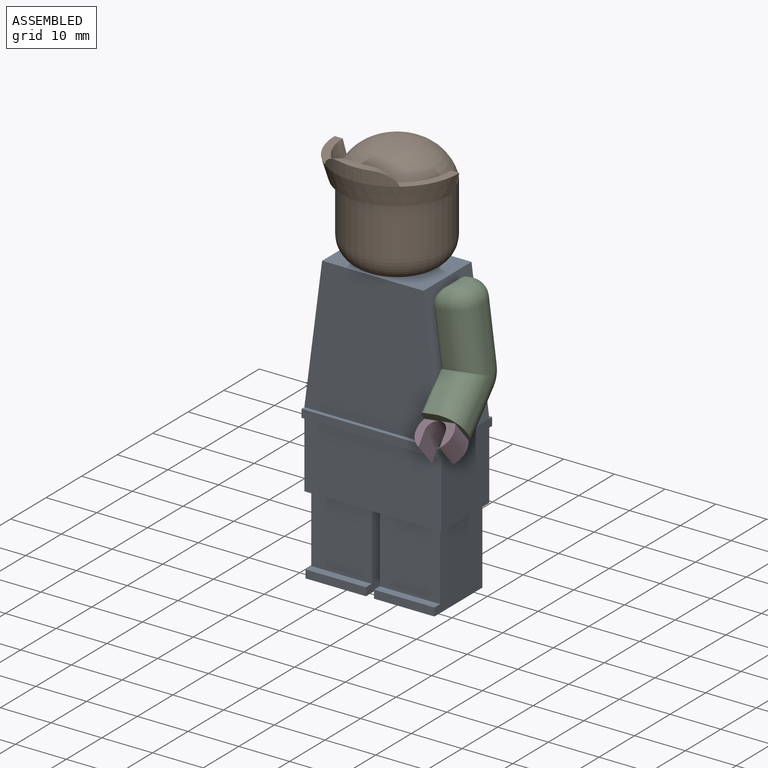
[diagram: assembled view]
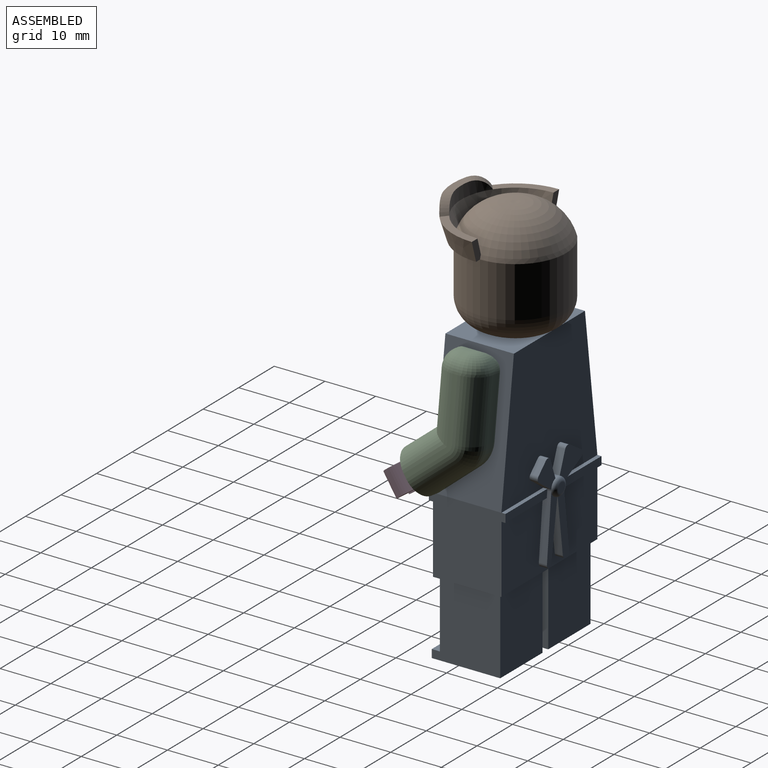
[diagram: assembled view, second angle]
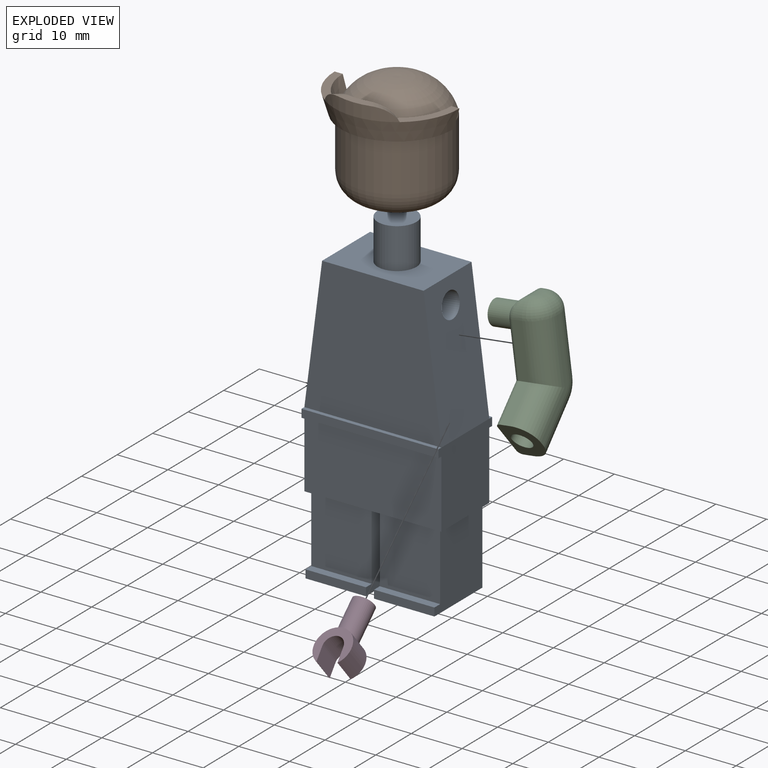
[diagram: exploded view]
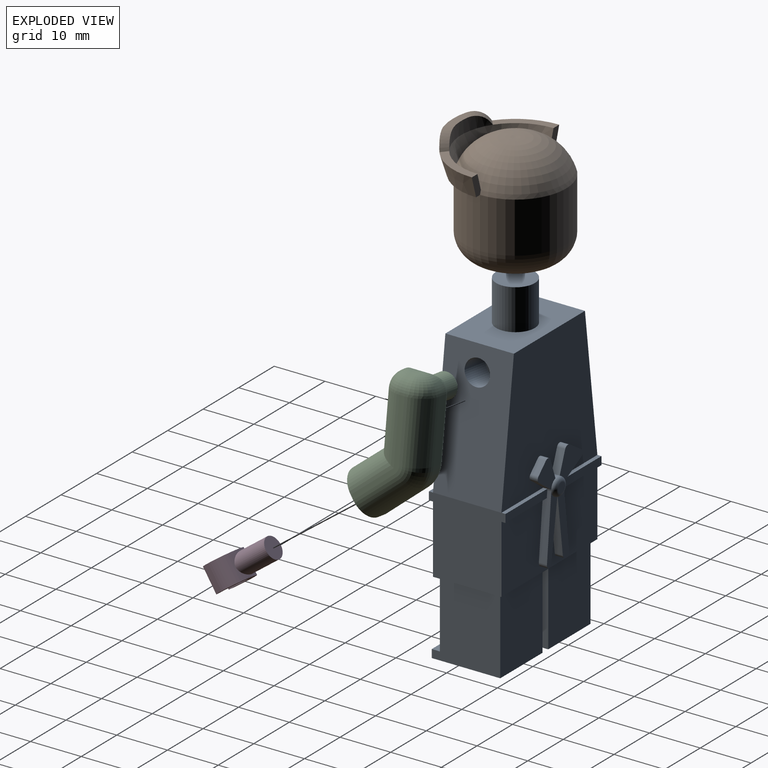
[diagram: exploded view, second angle]
ASSEMBLY  parts=4 mates=4
PART A: 68 faces, bbox 27x16.7x65 mm
  f0: cylinder r=1.76mm len=1.6mm, axis (0,-1,0), area 0.4mm2, adj f4,f9,f10,f16,f21,f67
  f1: cylinder r=1.76mm len=1.6mm, axis (0,-1,0), area 0.1mm2, adj f7,f8,f17,f67
  f2: cylinder r=1.76mm len=1.6mm, axis (0,-1,0), area 0.2mm2, adj f3,f5,f6,f16,f20,f67
  f3: plane 11.74x0.8mm, normal (0,0,1), area 9.4mm2, adj f2,f16,f20,f33
  f4: plane 11.74x0.8mm, normal (0,0,1), area 9.4mm2, adj f0,f16,f21,f34
  f5: plane 3.49x2.57mm, normal (0.59,0,-0.8), area 6.9mm2, adj f2,f16,f56,f58
  f6: plane 12.67x1.6mm, normal (1,0,0.1), area 19.3mm2, adj f2,f15,f17,f18,f20,f62
  f7: plane 11.3x1.72mm, normal (-0.99,0,-0.15), area 18.3mm2, adj f1,f15,f17,f61
  f8: plane 11.14x1.6mm, normal (0.99,0,-0.13), area 18mm2, adj f1,f14,f17,f63
  f9: plane 12.31x1.6mm, normal (-0.99,0,0.12), area 18.8mm2, adj f0,f14,f17,f19,f21,f64
  f10: plane 4.85x2.62mm, normal (-0.47,0,-0.88), area 8.8mm2, adj f0,f13,f16,f59
  f11: plane 4.13x1.6mm, normal (0.94,0,0.35), area 7mm2, adj f13,f16,f60,f65
  f12: plane 3.82x1.6mm, normal (-0.94,0,0.34), area 6.5mm2, adj f16,f56,f57,f65
  f13: plane 6.42x6.25mm, normal (0,1,0), area 22.3mm2, adj f10,f11,f54,f59,f60,f67
  f14: plane 13.23x3.22mm, normal (0,1,0), area 22mm2, adj f8,f9,f53,f63,f64,f67
  f15: plane 13.5x2.95mm, normal (0,1,0), area 18.8mm2, adj f6,f7,f61,f62,f67
  f16: plane 27x27mm, normal (0,1,0), area 590.9mm2, adj f0,f2,f3,f4,f5,f10,f11,f12
  f17: plane 27x13.4mm, normal (0,1,0), area 321.9mm2, adj f1,f6,f7,f8,f9,f18,f19,f33
  f18: plane 11.62x0.8mm, normal (0,0,-1), area 9.3mm2, adj f6,f17,f20,f33
  f19: plane 11.62x0.8mm, normal (0,0,-1), area 9.3mm2, adj f9,f17,f21,f34
  f20: plane 11.75x1.6mm, normal (0,1,0), area 18.7mm2, adj f2,f3,f6,f18,f33
  f21: plane 11.78x1.6mm, normal (0,1,0), area 18.7mm2, adj f0,f4,f9,f19,f34
  f22: plane 27x27mm, normal (0,-1,0), area 634.5mm2, adj f24,f25,f26,f36
  f23: plane 27x13.4mm, normal (0,-1,0), area 361.8mm2, adj f33,f34,f35,f37
  f24: plane 20x13.5mm, normal (0,0,1), area 224.4mm2, adj f16,f22,f25,f26,f31
  f25: plane 27x13.5mm, normal (-0.99,0,0.13), area 347.9mm2, adj f16,f22,f24,f27,f34
  f26: plane 27x13.5mm, normal (0.99,0,0.13), area 347.9mm2, adj f16,f22,f24,f29,f33
  f27: cylinder r=2.5mm len=6.59mm, axis (-0.99,0,0.13), area 94.2mm2, adj f25,f28
  f28: plane 5x4.96mm, normal (-0.99,0,0.13), area 19.6mm2, adj f27
  f29: cylinder r=2.5mm len=6.59mm, axis (0.99,0,0.13), area 94.2mm2, adj f26,f30
  f30: plane 5x4.96mm, normal (0.99,0,0.13), area 19.6mm2, adj f29
  f31: cylinder r=3.81mm len=8mm, axis (0,0,-1), area 191.5mm2, adj f24,f32
  f32: plane 7.62x7.62mm, normal (0,0,1), area 45.6mm2, adj f31
  f33: plane 15.1x15mm, normal (1,0,0), area 205.1mm2, adj f3,f17,f18,f20,f23,f26,f35,f36
  f34: plane 15.1x15mm, normal (-1,0,0), area 205.1mm2, adj f4,f17,f19,f21,f23,f25,f35,f36
  f35: plane 27x13.5mm, normal (0,0,-1), area 81.3mm2, adj f17,f23,f33,f34,f39,f40,f41,f42
  f36: plane 27x0.8mm, normal (0,0,1), area 21.6mm2, adj f22,f33,f34,f38
  f37: plane 27x0.8mm, normal (0,0,-1), area 21.6mm2, adj f23,f33,f34,f38
  f38: plane 27x1.6mm, normal (0,-1,0), area 43.2mm2, adj f33,f34,f36,f37
  f39: plane 15x13.5mm, normal (-1,0,0), area 181.1mm2, adj f35,f40,f42,f43,f49,f50
  f40: plane 15x11.9mm, normal (0,1,0), area 178.5mm2, adj f35,f39,f41,f43
  f41: plane 15x13.5mm, normal (1,0,0), area 181.1mm2, adj f35,f40,f42,f43,f49,f50
  f42: plane 13.4x11.9mm, normal (0,-1,0), area 159.5mm2, adj f35,f39,f41,f49
  f43: plane 13.5x11.9mm, normal (0,0,-1), area 160.6mm2, adj f39,f40,f41,f50
  f44: plane 15x13.5mm, normal (-1,0,0), area 181.1mm2, adj f35,f45,f47,f48,f51,f52
  f45: plane 15x11.9mm, normal (0,1,0), area 178.5mm2, adj f35,f44,f46,f48
  f46: plane 15x13.5mm, normal (1,0,0), area 181.1mm2, adj f35,f45,f47,f48,f51,f52
  f47: plane 13.4x11.9mm, normal (0,-1,0), area 159.5mm2, adj f35,f44,f46,f51
  f48: plane 13.5x11.9mm, normal (0,0,-1), area 160.6mm2, adj f44,f45,f46,f52
  f49: plane 11.9x1.6mm, normal (0,0,1), area 19mm2, adj f39,f41,f42,f50
  f50: plane 11.9x1.6mm, normal (0,-1,0), area 19mm2, adj f39,f41,f43,f49
  f51: plane 11.9x1.6mm, normal (0,0,1), area 19mm2, adj f44,f46,f47,f52
  f52: plane 11.9x1.6mm, normal (0,-1,0), area 19mm2, adj f44,f46,f48,f51
  f53: plane 1.6x0.17mm, normal (-0.13,0,-0.99), area 0.3mm2, adj f14,f17,f63,f64
  f54: plane 3.34x2.13mm, normal (-0.54,0,0.84), area 6.3mm2, adj f13,f16,f59,f60
  f55: plane 2.05x1.96mm, normal (0.69,0,0.72), area 4.5mm2, adj f16,f56,f57,f58
  f56: plane 5.98x4.98mm, normal (0,1,0), area 16.4mm2, adj f5,f12,f55,f57,f58,f67
  f57: cylinder r=0.8mm len=1.6mm, axis (0,-1,0), area 2.5mm2, adj f12,f16,f55,f56
  f58: cylinder r=0.8mm len=1.6mm, axis (0,-1,0), area 2.2mm2, adj f5,f16,f55,f56
  f59: cylinder r=0.8mm len=1.6mm, axis (0,-1,0), area 2.7mm2, adj f10,f13,f16,f54
  f60: cylinder r=0.8mm len=1.6mm, axis (0,-1,0), area 2.3mm2, adj f11,f13,f16,f54
  f61: cylinder r=0.8mm len=1.6mm, axis (0,-1,0), area 1.6mm2, adj f7,f15,f17,f62
  f62: cylinder r=0.8mm len=1.6mm, axis (0,-1,0), area 1.7mm2, adj f6,f15,f17,f61
  f63: cylinder r=0.8mm len=1.6mm, axis (0,-1,0), area 2mm2, adj f8,f14,f17,f53
  f64: cylinder r=0.8mm len=1.6mm, axis (0,-1,0), area 2mm2, adj f9,f14,f17,f53
  f65: cylinder r=1.76mm len=1.6mm, axis (0,-1,0), area 2mm2, adj f11,f12,f16,f67
  f66: plane 1.92x1.92mm, normal (0,1,0), area 2.9mm2, adj f67
  f67: torus R=0.96mm, axis (0,1,0), area 11.6mm2, adj f0,f1,f2,f13,f14,f15,f56,f65
PART B: 19 faces, bbox 24.6x24x21.5 mm
  f0: plane 9.82x6.15mm, normal (0,0,1), area 17.3mm2, adj f1,f5,f8,f16
  f1: cone r=10.7mm half-angle=16.7deg, axis (0,0,1), area 107.4mm2, adj f0,f7,f8,f9,f11,f12
  f2: cylinder r=10mm len=20mm, axis (0,0,-1), area 628.3mm2, adj f4,f6,f11
  f3: plane 10x10mm, normal (0,0,-1), area 28.3mm2, adj f4,f17
  f4: torus R=5mm, axis (0,0,1), area 403.8mm2, adj f2,f3
  f5: cone r=11.1mm half-angle=16.7deg, axis (0,0,1), area 153.5mm2, adj f0,f6,f7,f8,f9,f13
  f6: plane 22.2x11.1mm, normal (0,0,-1), area 36.5mm2, adj f2,f5,f8,f9
  f7: plane 9.82x6.15mm, normal (0,0,1), area 17.3mm2, adj f1,f5,f9,f15
  f8: plane 4x2.56mm, normal (0,1,0), area 6.2mm2, adj f0,f1,f5,f6,f11
  f9: plane 4x2.56mm, normal (0,1,0), area 6.2mm2, adj f1,f5,f6,f7,f11
  f10: torus R=0.82mm, axis (0,0,-1), area 8.5mm2, adj f11
  f11: torus R=1.47mm, axis (0,0,-1), area 440mm2, adj f1,f2,f8,f9,f10
  f12: cylinder r=10.7mm len=12.3mm, axis (0,0,-1), area 26mm2, adj f1,f14,f15,f16
  f13: cylinder r=12.3mm len=14.82mm, axis (0,0,-1), area 33.1mm2, adj f5,f14,f15,f16
  f14: plane 6.29x1.72mm, normal (0,0,1), area 7.7mm2, adj f12,f13,f15,f16
  f15: cylinder r=5mm len=5.86mm, axis (-0.77,-0.64,0), area 9.3mm2, adj f7,f12,f13,f14
  f16: cylinder r=5mm len=5.86mm, axis (0.77,-0.64,0), area 9.3mm2, adj f0,f12,f13,f14
  f17: cylinder r=4mm len=10mm, axis (0,0,-1), area 251.3mm2, adj f3,f18
  f18: plane 8x8mm, normal (0,0,-1), area 50.3mm2, adj f17
PART C: 33 faces, bbox 16.1x12.6x26.5 mm
  f0: plane 22.32x13.7mm, normal (0,1,0), area 147mm2, adj f6,f12,f13,f14,f15,f16,f18,f27
  f1: plane 19.91x8.9mm, normal (0,-1,0), area 22.5mm2, adj f6,f8,f9,f10,f11,f20,f29
  f2: plane 2.27x0.4mm, normal (0,0,1), area 0.8mm2, adj f26,f27,f29,f32
  f3: plane 10.67x2mm, normal (-1,0,0), area 21.3mm2, adj f5,f10,f14,f23
  f4: plane 11.93x2mm, normal (1,0,0), area 23.9mm2, adj f8,f12,f19,f31
  f5: plane 6.3x5.25mm, normal (-0.64,0,0.77), area 16.4mm2, adj f3,f6,f11,f15
  f6: plane 7.31x7.1mm, normal (-0.8,0,-0.6), area 43.1mm2, adj f0,f1,f5,f7,f9,f11,f13,f15
  f7: plane 7.79x6.62mm, normal (0.65,0,-0.76), area 20.5mm2, adj f6,f9,f13,f19
  f8: cylinder r=4mm len=11.93mm, axis (0,0,-1), area 74.9mm2, adj f1,f4,f20,f32
  f9: cylinder r=4mm len=10.38mm, axis (0.76,0,0.65), area 63.5mm2, adj f1,f6,f7,f20
  f10: cylinder r=4mm len=12.54mm, axis (0,0,1), area 71.3mm2, adj f1,f3,f11,f26
  f11: cylinder r=4mm len=10.46mm, axis (-0.77,0,-0.64), area 56.5mm2, adj f1,f5,f6,f10
  f12: cylinder r=1mm len=11.93mm, axis (0,0,1), area 18.7mm2, adj f0,f4,f18,f28
  f13: cylinder r=1mm len=8.44mm, axis (-0.76,0,-0.65), area 16mm2, adj f0,f6,f7,f18
  f14: cylinder r=1mm len=11.14mm, axis (0,0,-1), area 17.1mm2, adj f0,f3,f15,f25
  f15: cylinder r=1mm len=7.34mm, axis (0.77,0,0.64), area 13.3mm2, adj f0,f5,f6,f14
  f16: cylinder r=2.38mm len=5.7mm, axis (0,-1,0), area 82.7mm2, adj f0,f17,f27
  f17: plane 4.76x4.76mm, normal (0,1,0), area 17.8mm2, adj f16
  f18: torus R=5mm, axis (0,-1,0), area 7.7mm2, adj f0,f12,f13,f19
  f19: cylinder r=6mm len=4.57mm, axis (0,1,0), area 10.4mm2, adj f4,f7,f18,f20
  f20: torus R=2mm, axis (0,-1,0), area 24.7mm2, adj f1,f8,f9,f19
  f21: cylinder r=2mm len=8.8mm, axis (-0.8,0,-0.6), area 100.5mm2, adj f6,f22
  f22: plane 4x3.2mm, normal (-0.8,0,-0.6), area 12.6mm2, adj f21
  f23: cylinder r=3.3mm len=3.27mm, axis (0,1,0), area 6.1mm2, adj f3,f25,f26
  f24: bspline ~1.03x1.03mm, area 0mm2, adj f25,f26,f27
  f25: bspline ~3.44x3.15mm, area 5.5mm2, adj f14,f23,f24,f27
  f26: torus R=0.7mm, axis (0,0,-1), area 22.7mm2, adj f2,f10,f23,f24,f29
  f27: cylinder r=3.3mm len=7mm, axis (-1,0,0), area 24.3mm2, adj f0,f2,f16,f24,f25,f28,f30
  f28: bspline ~3.44x3.15mm, area 5.5mm2, adj f12,f27,f30,f31
  f29: cylinder r=3.3mm len=3.3mm, axis (1,0,0), area 5.2mm2, adj f1,f2,f26,f32
  f30: bspline ~1.03x1.03mm, area 0mm2, adj f27,f28,f32
  f31: cylinder r=3.3mm len=3.27mm, axis (0,-1,0), area 6.1mm2, adj f4,f28,f32
  f32: torus R=0.7mm, axis (0,0,-1), area 22.7mm2, adj f2,f8,f29,f30,f31
PART D: 8 faces, bbox 7.3x13.2x5 mm
  f0: cylinder r=3.65mm len=7.29mm, axis (0,0,-1), area 78.8mm2, adj f1,f3,f5,f6,f7
  f1: plane 7.29x6.88mm, normal (0,0,1), area 21.6mm2, adj f0,f2,f6,f7
  f2: cylinder r=2mm len=5mm, axis (0,0,-1), area 31.5mm2, adj f1,f5,f6,f7
  f3: cylinder r=2.1mm len=7.02mm, axis (0,1,0), area 88.1mm2, adj f0,f4
  f4: plane 4.2x4.2mm, normal (0,-1,0), area 13.9mm2, adj f3
  f5: plane 7.29x6.88mm, normal (0,0,-1), area 21.6mm2, adj f0,f2,f6,f7
  f6: plane 5x3.03mm, normal (1,0.1,0), area 15.2mm2, adj f0,f1,f2,f5
  f7: plane 5x3.03mm, normal (-1,-0.1,0), area 15.2mm2, adj f0,f1,f2,f5
PLACE A t=(-13.64,10.72,24.24)mm
PLACE B t=(-13.64,4.03,51.24)mm
PLACE C rot(axis=(-0.06,-0.06,1),90.2deg) t=(-2.16,3.95,35.89)mm
PLACE D rot(axis=(0.06,0.32,-0.95),177.7deg) t=(1.78,-3.75,28.83)mm
MATE cylindrical C.f16 <-> A.f29  axis (0.99,0,0.13) through (-8.95,3.95,45.55)mm
MATE planar A.f24 <-> B.f11  axis (0,0,1) through (-13.64,3.96,51.24)mm
MATE cylindrical A.f31 <-> B.f17  axis (0,0,-1) through (-13.64,4.03,55.24)mm
MATE slider D.f3 <-> C.f21  axis (-0.08,0.8,0.59) through (1.21,2.25,33.28)mm
